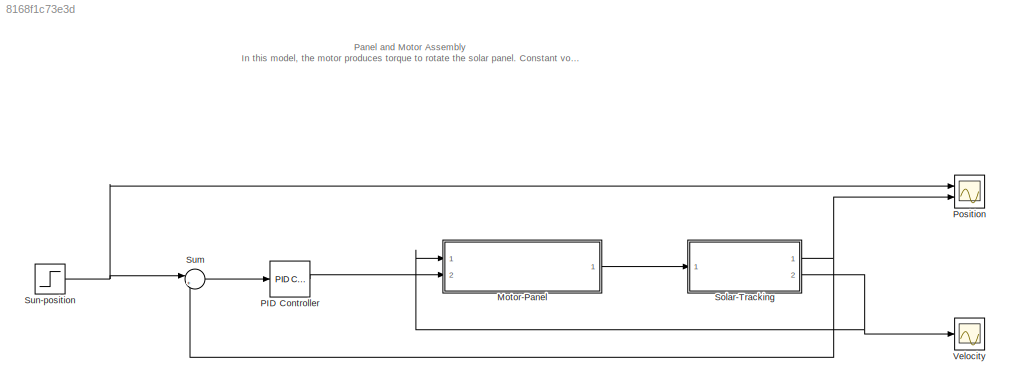
MODEL slx_8168f1c73e3d
KIND model
CONFIG AbsTol = auto
CONFIG EnableMultiTasking = off
CONFIG FixedStep = auto
CONFIG MaxStep = auto
CONFIG MinStep = auto
CONFIG RelTol = 1e-3
CONFIG SampleTimeConstraint = Unconstrained
CONFIG Solver = VariableStepAuto
CONFIG SolverName = VariableStepAuto
CONFIG StartTime = 0.0
CONFIG StopTime = 10.0
WORKSPACE source: mxarray member
WORKSPACE J = 8.6
WORKSPACE Kd = 5
WORKSPACE Kf = 0.07
WORKSPACE Kg = 2000
WORKSPACE Kt = 0.07
WORKSPACE L = 1e-05
WORKSPACE R = 10
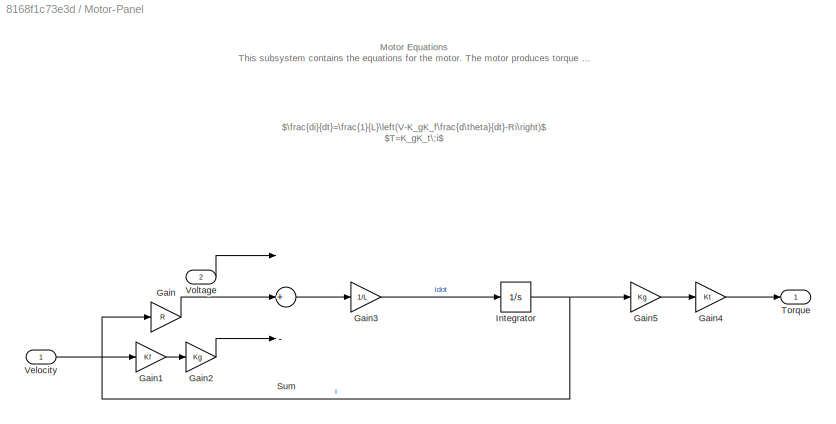
BLOCK [SubSystem] Motor-Panel
  Ports = [2, 1]
  RequestExecContextInheritance = off
BLOCK [Gain] Motor-Panel/Gain
  Gain = R
  OutDataTypeStr = Inherit: Inherit via internal rule
  ParamDataTypeStr = Inherit: Inherit via internal rule
  SaturateOnIntegerOverflow = off
BLOCK [Gain] Motor-Panel/Gain1
  Gain = Kf
  OutDataTypeStr = Inherit: Inherit via internal rule
  ParamDataTypeStr = Inherit: Inherit via internal rule
  SaturateOnIntegerOverflow = off
BLOCK [Gain] Motor-Panel/Gain2
  Gain = Kg
  OutDataTypeStr = Inherit: Inherit via internal rule
  ParamDataTypeStr = Inherit: Inherit via internal rule
  SaturateOnIntegerOverflow = off
BLOCK [Gain] Motor-Panel/Gain3
  Gain = 1/L
  OutDataTypeStr = Inherit: Inherit via internal rule
  ParamDataTypeStr = Inherit: Inherit via internal rule
  SaturateOnIntegerOverflow = off
BLOCK [Gain] Motor-Panel/Gain4
  Gain = Kt
  OutDataTypeStr = Inherit: Inherit via internal rule
  ParamDataTypeStr = Inherit: Inherit via internal rule
  SaturateOnIntegerOverflow = off
BLOCK [Gain] Motor-Panel/Gain5
  Gain = Kg
  OutDataTypeStr = Inherit: Inherit via internal rule
  ParamDataTypeStr = Inherit: Inherit via internal rule
  SaturateOnIntegerOverflow = off
BLOCK [Integrator] Motor-Panel/Integrator
  Ports = [1, 1]
BLOCK [Sum] Motor-Panel/Sum
  InputSameDT = off
  Inputs = |+--
  OutDataTypeStr = Inherit: Inherit via internal rule
  Ports = [3, 1]
  SaturateOnIntegerOverflow = off
BLOCK [Outport] Motor-Panel/Torque
  IconDisplay = Port number
BLOCK [Inport] Motor-Panel/Velocity
  IconDisplay = Port number
BLOCK [Inport] Motor-Panel/Voltage
  IconDisplay = Port number
  Port = 2
BLOCK [Reference] PID Controller  REF=simulink/Continuous/PID Controller
  Ports = [1, 1]
  SourceBlock = simulink/Continuous/PID Controller
  SourceProductBaseCode = SL
  SourceProductName = Simulink
  SourceType = PID 1dof
BLOCK [Scope] Position 
  Floating = off
  NumInputPorts = 2
  Ports = [2]
  ScopeSpecificationString = Simulink.scopes.TimeScopeBlockCfg('CurrentConfiguration', extmgr.ConfigurationSet(extmgr.Configuration('Core','General UI',true),extmgr.Configuration('Core','Source UI',true),extmgr.Configuration('Sources','WiredSimulink',true),extmgr.Configuration('Visuals','Time Domain',true,'SerializedDisplays',{struct('MinYLimReal','-0.14923','MaxYLimReal','1.34306','YLabelReal','','MinYLimMag','0.00000','MaxY...<+1575ch>
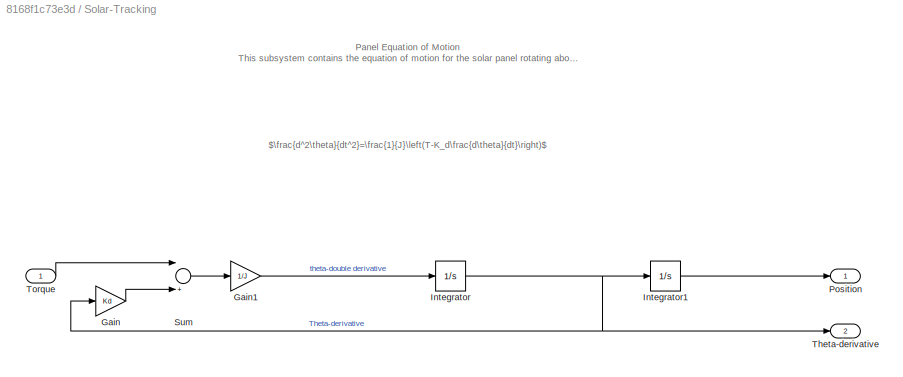
BLOCK [SubSystem] Solar-Tracking
  Ports = [1, 2]
  RequestExecContextInheritance = off
BLOCK [Gain] Solar-Tracking/Gain
  Gain = Kd
  OutDataTypeStr = Inherit: Inherit via internal rule
  ParamDataTypeStr = Inherit: Inherit via internal rule
  SaturateOnIntegerOverflow = off
BLOCK [Gain] Solar-Tracking/Gain1
  Gain = 1/J
  OutDataTypeStr = Inherit: Inherit via internal rule
  ParamDataTypeStr = Inherit: Inherit via internal rule
  SaturateOnIntegerOverflow = off
BLOCK [Integrator] Solar-Tracking/Integrator
  Ports = [1, 1]
BLOCK [Integrator] Solar-Tracking/Integrator1
  Ports = [1, 1]
BLOCK [Outport] Solar-Tracking/Position
  IconDisplay = Port number
BLOCK [Sum] Solar-Tracking/Sum
  InputSameDT = off
  Inputs = |+-
  OutDataTypeStr = Inherit: Inherit via internal rule
  Ports = [2, 1]
  SaturateOnIntegerOverflow = off
BLOCK [Outport] Solar-Tracking/Theta-derivative
  IconDisplay = Port number
  Port = 2
BLOCK [Inport] Solar-Tracking/Torque 
  IconDisplay = Port number
BLOCK [Sum] Sum
  IconShape = round
  InputSameDT = off
  Inputs = |+-
  OutDataTypeStr = Inherit: Inherit via internal rule
  Ports = [2, 1]
  SaturateOnIntegerOverflow = off
BLOCK [Step] Sun-position
  SampleTime = 0
BLOCK [Scope] Velocity 
  Floating = off
  NumInputPorts = 1
  Ports = [1]
  ScopeSpecificationString = Simulink.scopes.TimeScopeBlockCfg('CurrentConfiguration', extmgr.ConfigurationSet(extmgr.Configuration('Core','General UI',true),extmgr.Configuration('Core','Source UI',true),extmgr.Configuration('Sources','WiredSimulink',true,'DataLoggingVariableName','ScopeData1'),extmgr.Configuration('Visuals','Time Domain',true,'SerializedDisplays',{struct('MinYLimReal','-0.31892','MaxYLimReal','1.90591','YLab...<+1390ch>
ANNOTATION (root): Panel and Motor Assembly In this model, the motor produces torque to rotate the solar panel. Constant voltage is applied to the motor.
ANNOTATION Motor-Panel: Motor Equations This subsystem contains the equations for the motor. The motor produces torque to rotate the solar panel.
ANNOTATION Motor-Panel: $\frac{di}{dt}=\frac{1}{L}\left(V-K_gK_f\frac{d\theta}{dt}-Ri\right)$ $T=K_gK_t\;i$
ANNOTATION Solar-Tracking: Panel Equation of Motion This subsystem contains the equation of motion for the solar panel rotating about its central post. The panel's rotation is driven by torque from the motor.
ANNOTATION Solar-Tracking: $\frac{d^2\theta}{dt^2}=\frac{1}{J}\left(T-K_d\frac{d\theta}{dt}\right)$
LINE Motor-Panel/Gain1:1 -> Motor-Panel/Gain2:1
LINE Motor-Panel/Gain2:1 -> Motor-Panel/Sum:3
LINE Motor-Panel/Gain3:1 -> Motor-Panel/Integrator:1
LINE Motor-Panel/Gain4:1 -> Motor-Panel/Torque:1
LINE Motor-Panel/Gain5:1 -> Motor-Panel/Gain4:1
LINE Motor-Panel/Gain:1 -> Motor-Panel/Sum:2
NET Motor-Panel/Integrator:1 -> Motor-Panel/Gain5:1, Motor-Panel/Gain:1
LINE Motor-Panel/Sum:1 -> Motor-Panel/Gain3:1
LINE Motor-Panel/Velocity:1 -> Motor-Panel/Gain1:1
LINE Motor-Panel/Voltage:1 -> Motor-Panel/Sum:1
LINE Motor-Panel:1 -> Solar-Tracking:1
LINE PID Controller:1 -> Motor-Panel:2
LINE Solar-Tracking/Gain1:1 -> Solar-Tracking/Integrator:1
LINE Solar-Tracking/Gain:1 -> Solar-Tracking/Sum:2
LINE Solar-Tracking/Integrator1:1 -> Solar-Tracking/Position:1
NET Solar-Tracking/Integrator:1 -> Solar-Tracking/Gain:1, Solar-Tracking/Integrator1:1, Solar-Tracking/Theta-derivative:1
LINE Solar-Tracking/Sum:1 -> Solar-Tracking/Gain1:1
LINE Solar-Tracking/Torque :1 -> Solar-Tracking/Sum:1
NET Solar-Tracking:1 -> Position :2, Sum:2
NET Solar-Tracking:2 -> Motor-Panel:1, Velocity :1
LINE Sum:1 -> PID Controller:1
NET Sun-position:1 -> Position :1, Sum:1
note: NET lines group one-source signal fan-out (src -> all destinations, sorted); 1:1 wires keep LINE
